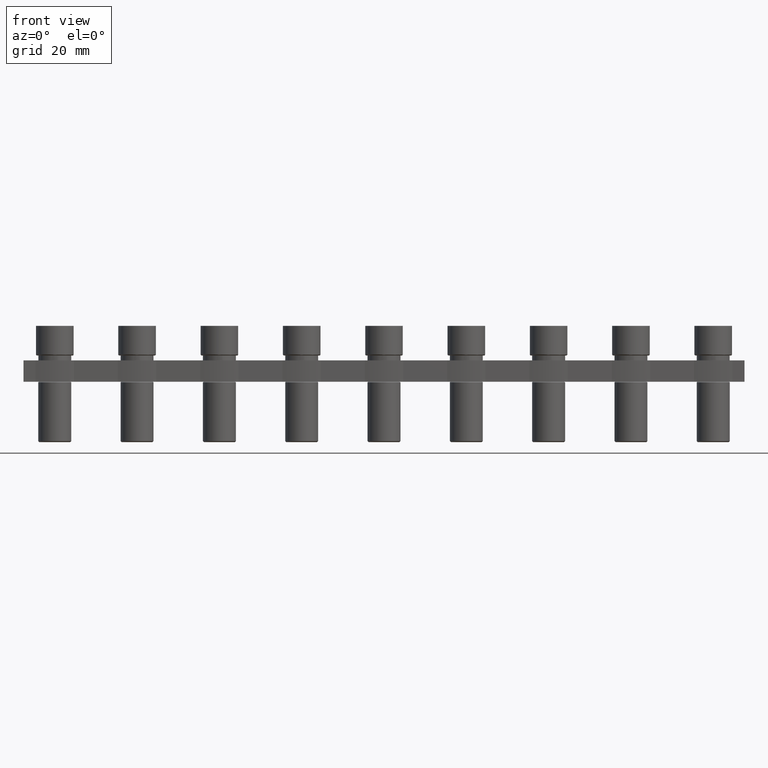
[diagram: clean part render]
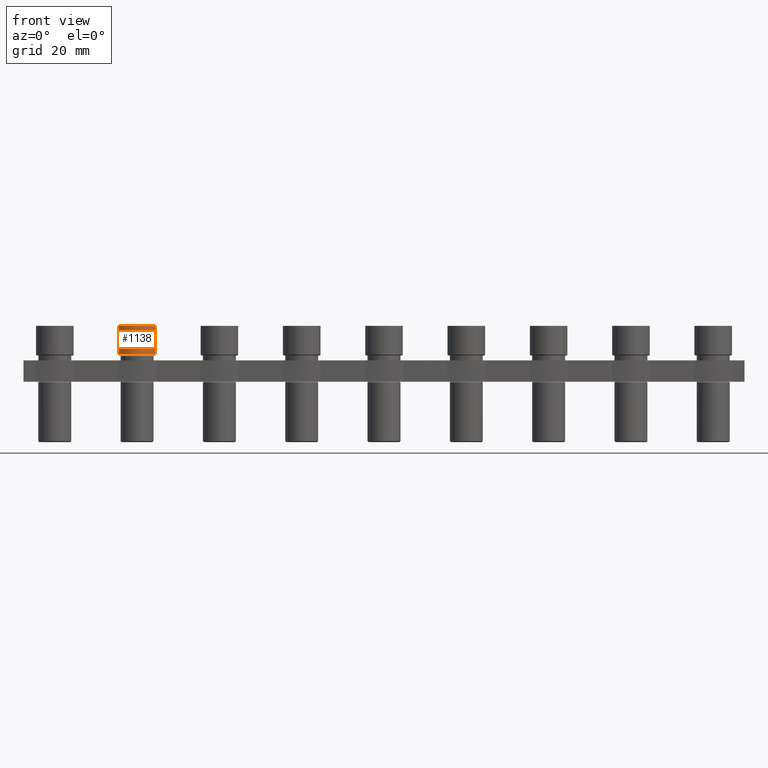
[diagram: same view with one face highlighted and labeled with its STEP entity id]
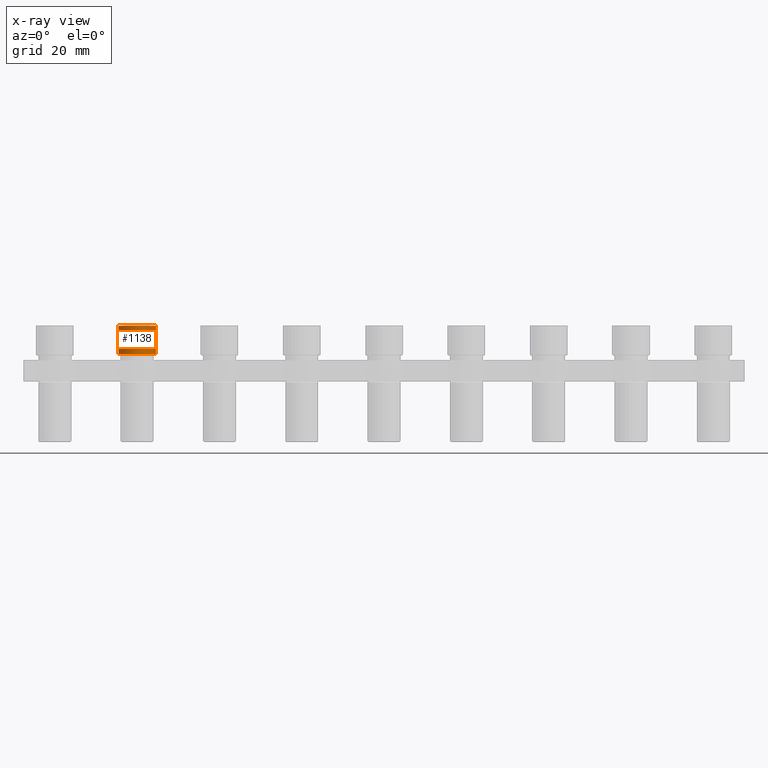
[diagram: x-ray of the same camera — body ghosted, the highlighted face saturated]
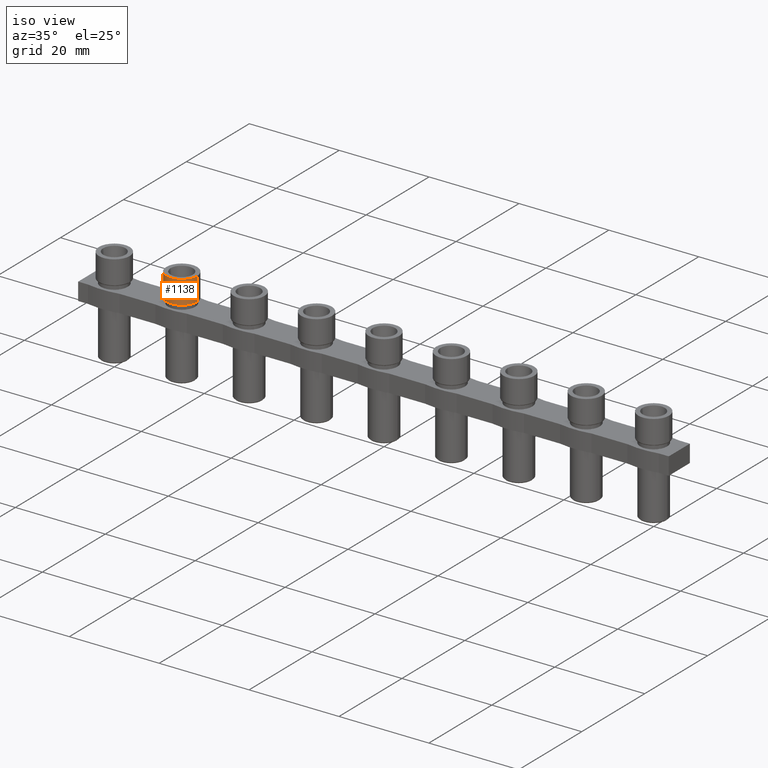
[diagram: same view with one face highlighted and labeled with its STEP entity id]
A machine part, front view. The second image highlights one B-rep face of the part: STEP entity #1138.
The next image is the same camera in x-ray: the body ghosted, the highlighted face saturated — about 0% of this face is hidden behind the body in this view.
A second angle (iso view) of the same face is appended — the face is thin or edge-on in the first view.
In plain terms, the highlighted cylindrical surface (edge-blend (fillet) strip) has radius 3.425 mm, axis along (0, 0, -1).
Its self-contained STEP definition (entity closure, byte-faithful):
#1138 = ADVANCED_FACE ( 'NONE', ( #9113 ), #9131, .T. ) ;
#2182 = AXIS2_PLACEMENT_3D ( 'NONE', #9149, #9142, #9125 ) ;
#4056 = VERTEX_POINT ( 'NONE', #14199 ) ;
#4063 = VERTEX_POINT ( 'NONE', #14276 ) ;
#4292 = VERTEX_POINT ( 'NONE', #13887 ) ;
#4311 = VERTEX_POINT ( 'NONE', #13868 ) ;
#4638 = ORIENTED_EDGE ( 'NONE', *, *, #11806, .F. ) ;
#4640 = ORIENTED_EDGE ( 'NONE', *, *, #11865, .T. ) ;
#4706 = ORIENTED_EDGE ( 'NONE', *, *, #11823, .F. ) ;
#4739 = ORIENTED_EDGE ( 'NONE', *, *, #11912, .T. ) ;
#5837 = EDGE_LOOP ( 'NONE', ( #4638, #4739, #4640, #4706 ) ) ;
#9113 = FACE_OUTER_BOUND ( 'NONE', #5837, .T. ) ;
#9125 = DIRECTION ( 'NONE',  ( 1.000000000000000000, 2.491358183583711900E-016, 0.0000000000000000000 ) ) ;
#9131 = CYLINDRICAL_SURFACE ( 'NONE', #2182, 3.424999999999997600 ) ;
#9142 = DIRECTION ( 'NONE',  ( 0.0000000000000000000, 0.0000000000000000000, -1.000000000000000000 ) ) ;
#9149 = CARTESIAN_POINT ( 'NONE',  ( 15.00000000000165000, 1.868518637687989600E-015, 5.400000000000000400 ) ) ;
#11806 = EDGE_CURVE ( 'NONE', #4292, #4311, #12724, .T. ) ;
#11823 = EDGE_CURVE ( 'NONE', #4311, #4063, #16206, .T. ) ;
#11865 = EDGE_CURVE ( 'NONE', #4056, #4063, #12788, .T. ) ;
#11912 = EDGE_CURVE ( 'NONE', #4292, #4056, #16493, .T. ) ;
#12715 = AXIS2_PLACEMENT_3D ( 'NONE', #16170, #16184, #16171 ) ;
#12724 = CIRCLE ( 'NONE', #12715, 3.424999999999997600 ) ;
#12765 = VECTOR ( 'NONE', #16223, 1000.000000000000000 ) ;
#12788 = CIRCLE ( 'NONE', #12794, 3.424999999999997600 ) ;
#12794 = AXIS2_PLACEMENT_3D ( 'NONE', #16364, #16338, #16365 ) ;
#12841 = VECTOR ( 'NONE', #16478, 1000.000000000000000 ) ;
#13868 = CARTESIAN_POINT ( 'NONE',  ( 18.42500000000164900, 2.721808815565410300E-015, 5.400000000000000400 ) ) ;
#13887 = CARTESIAN_POINT ( 'NONE',  ( 11.57500000000165300, 5.957869311026002800E-016, 5.400000000000000400 ) ) ;
#14199 = CARTESIAN_POINT ( 'NONE',  ( 11.57500000000165300, 5.957869311026000800E-016, 0.1999999999999996500 ) ) ;
#14276 = CARTESIAN_POINT ( 'NONE',  ( 18.42500000000164900, 2.721808815565410300E-015, 0.1999999999999996500 ) ) ;
#16170 = CARTESIAN_POINT ( 'NONE',  ( 15.00000000000165000, 1.868518637687989600E-015, 5.400000000000000400 ) ) ;
#16171 = DIRECTION ( 'NONE',  ( 1.000000000000000000, 2.491358183583711900E-016, 0.0000000000000000000 ) ) ;
#16184 = DIRECTION ( 'NONE',  ( -0.0000000000000000000, -0.0000000000000000000, 1.000000000000000000 ) ) ;
#16206 = LINE ( 'NONE', #16225, #12765 ) ;
#16223 = DIRECTION ( 'NONE',  ( 0.0000000000000000000, 0.0000000000000000000, -1.000000000000000000 ) ) ;
#16225 = CARTESIAN_POINT ( 'NONE',  ( 18.42500000000164900, 2.721808815565410300E-015, 5.400000000000000400 ) ) ;
#16338 = DIRECTION ( 'NONE',  ( 0.0000000000000000000, 0.0000000000000000000, 1.000000000000000000 ) ) ;
#16364 = CARTESIAN_POINT ( 'NONE',  ( 15.00000000000165000, 2.078239402041973700E-015, 0.1999999999999996500 ) ) ;
#16365 = DIRECTION ( 'NONE',  ( -1.000000000000000000, -2.491358183583711900E-016, 0.0000000000000000000 ) ) ;
#16478 = DIRECTION ( 'NONE',  ( 0.0000000000000000000, 0.0000000000000000000, -1.000000000000000000 ) ) ;
#16493 = LINE ( 'NONE', #16500, #12841 ) ;
#16500 = CARTESIAN_POINT ( 'NONE',  ( 11.57500000000165300, 5.957869311026004800E-016, 5.400000000000000400 ) ) ;